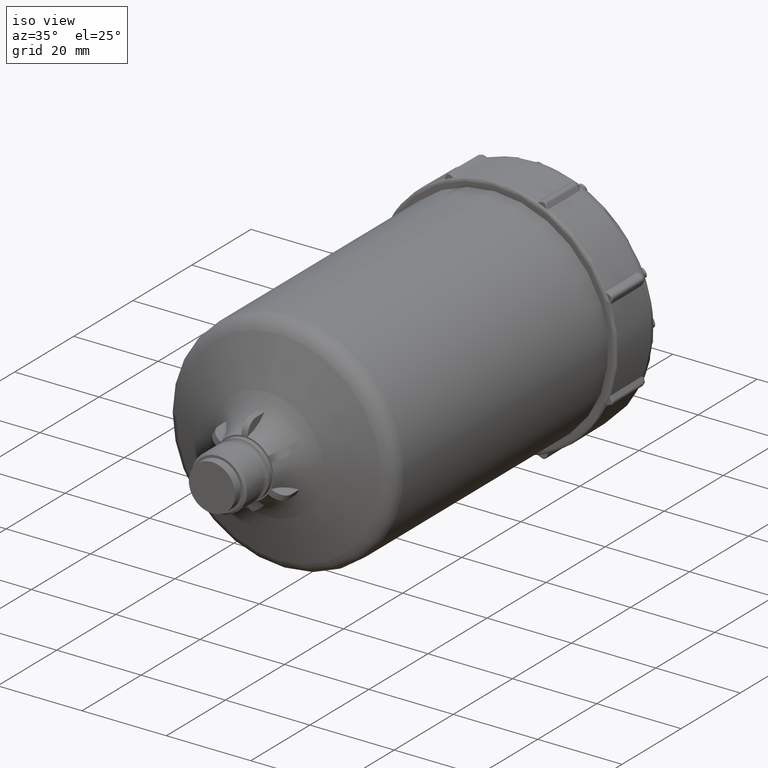
[diagram: clean part render]
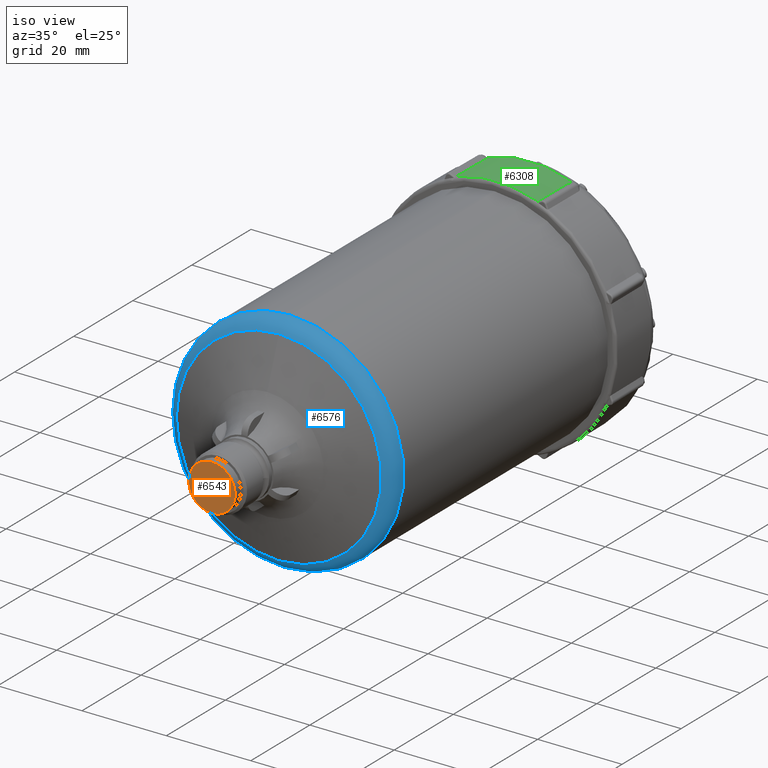
[diagram: same view with three faces highlighted in distinct colors, each labeled with its STEP entity id]
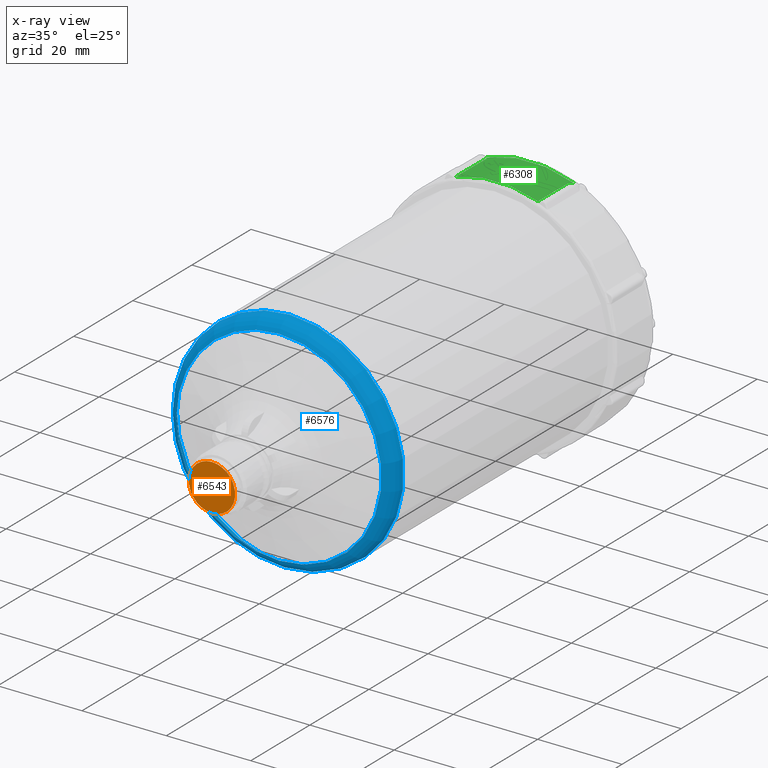
[diagram: x-ray of the same camera — body ghosted, the three highlighted faces saturated]
A machine part, iso view with three faces highlighted in distinct colors.
The next image is the same camera in x-ray (body ghosted, the three faces saturated) — at least one of them is partly hidden behind the body in this view.
Their STEP definitions:

[orange] entity #6543 — the highlighted planar face has unit normal (0, -1, -0).
#1775=FACE_OUTER_BOUND('',#2156,.T.);
#2156=EDGE_LOOP('',(#5808,#5809));
#2536=CIRCLE('',#7153,5.5);
#2537=CIRCLE('',#7154,5.5);
#3128=VERTEX_POINT('',#13807);
#3129=VERTEX_POINT('',#13809);
#4040=EDGE_CURVE('',#3128,#3129,#2536,.T.);
#4041=EDGE_CURVE('',#3129,#3128,#2537,.T.);
#5808=ORIENTED_EDGE('',*,*,#4041,.F.);
#5809=ORIENTED_EDGE('',*,*,#4040,.F.);
#6207=PLANE('',#7155);
#6543=ADVANCED_FACE('',(#1775),#6207,.T.);
#7153=AXIS2_PLACEMENT_3D('',#13810,#8603,#8604);
#7154=AXIS2_PLACEMENT_3D('',#13811,#8605,#8606);
#7155=AXIS2_PLACEMENT_3D('',#13812,#8607,#8608);
#8603=DIRECTION('center_axis',(-3.67702306362359E-17,1.,2.31725584917124E-17));
#8604=DIRECTION('ref_axis',(1.63311561366286E-33,6.4431110866773E-32,-1.));
#8605=DIRECTION('center_axis',(-3.67702306362359E-17,1.,2.31725584917124E-17));
#8606=DIRECTION('ref_axis',(1.63311561366286E-33,6.4431110866773E-32,-1.));
#8607=DIRECTION('center_axis',(3.67702306362359E-17,-1.,-2.31725584917124E-17));
#8608=DIRECTION('ref_axis',(-1.,-3.67702306362359E-17,-1.63311561366286E-33));
#13807=CARTESIAN_POINT('',(4.20349788060968E-15,-96.,5.5));
#13809=CARTESIAN_POINT('',(3.67990066116245,-96.,-4.08758255255795));
#13810=CARTESIAN_POINT('Origin',(3.52994214107864E-15,-96.,-2.52001573597372E-15));
#13811=CARTESIAN_POINT('Origin',(3.52994214107864E-15,-96.,-2.52001573597372E-15));
#13812=CARTESIAN_POINT('Origin',(3.52994214107864E-15,-96.,-5.06367513459482));

[blue] entity #6576 — the highlighted toroidal blend (fillet) surface has major radius 22.95 mm and minor (blend) radius 4 mm.
#200=TOROIDAL_SURFACE('',#7226,22.9500000000001,4.);
#1808=FACE_OUTER_BOUND('',#2191,.T.);
#2191=EDGE_LOOP('',(#6001,#6002,#6003,#6004,#6005,#6006,#6007,#6008));
#2573=CIRCLE('',#7223,24.3180805733027);
#2574=CIRCLE('',#7224,24.3180805733027);
#2575=CIRCLE('',#7225,24.3180805733027);
#2576=CIRCLE('',#7227,26.9500000000001);
#2577=CIRCLE('',#7228,26.9500000000001);
#2578=CIRCLE('',#7229,26.9500000000001);
#2579=CIRCLE('',#7230,4.);
#3193=VERTEX_POINT('',#14162);
#3194=VERTEX_POINT('',#14163);
#3195=VERTEX_POINT('',#14165);
#3196=VERTEX_POINT('',#14170);
#3197=VERTEX_POINT('',#14171);
#3198=VERTEX_POINT('',#14173);
#4134=EDGE_CURVE('',#3193,#3194,#2573,.T.);
#4135=EDGE_CURVE('',#3195,#3193,#2574,.T.);
#4137=EDGE_CURVE('',#3194,#3195,#2575,.T.);
#4138=EDGE_CURVE('',#3196,#3197,#2576,.T.);
#4139=EDGE_CURVE('',#3198,#3196,#2577,.T.);
#4140=EDGE_CURVE('',#3197,#3198,#2578,.T.);
#4141=EDGE_CURVE('',#3197,#3194,#2579,.T.);
#6001=ORIENTED_EDGE('',*,*,#4138,.F.);
#6002=ORIENTED_EDGE('',*,*,#4139,.F.);
#6003=ORIENTED_EDGE('',*,*,#4140,.F.);
#6004=ORIENTED_EDGE('',*,*,#4141,.T.);
#6005=ORIENTED_EDGE('',*,*,#4137,.T.);
#6006=ORIENTED_EDGE('',*,*,#4135,.T.);
#6007=ORIENTED_EDGE('',*,*,#4134,.T.);
#6008=ORIENTED_EDGE('',*,*,#4141,.F.);
#6576=ADVANCED_FACE('',(#1808),#200,.T.);
#7223=AXIS2_PLACEMENT_3D('',#14164,#8782,#8783);
#7224=AXIS2_PLACEMENT_3D('',#14166,#8784,#8785);
#7225=AXIS2_PLACEMENT_3D('',#14168,#8787,#8788);
#7226=AXIS2_PLACEMENT_3D('',#14169,#8789,#8790);
#7227=AXIS2_PLACEMENT_3D('',#14172,#8791,#8792);
#7228=AXIS2_PLACEMENT_3D('',#14174,#8793,#8794);
#7229=AXIS2_PLACEMENT_3D('',#14175,#8795,#8796);
#7230=AXIS2_PLACEMENT_3D('',#14176,#8797,#8798);
#8782=DIRECTION('center_axis',(-3.67702306362359E-17,1.,2.31725584917124E-17));
#8783=DIRECTION('ref_axis',(1.63311561366286E-33,6.58922775134368E-32,-1.));
#8784=DIRECTION('center_axis',(-3.67702306362359E-17,1.,2.31725584917124E-17));
#8785=DIRECTION('ref_axis',(1.63311561366286E-33,6.58922775134368E-32,-1.));
#8787=DIRECTION('center_axis',(-3.67702306362359E-17,1.,2.31725584917124E-17));
#8788=DIRECTION('ref_axis',(1.63311561366286E-33,6.58922775134368E-32,-1.));
#8789=DIRECTION('center_axis',(-3.67702306362359E-17,1.,2.31725584917124E-17));
#8790=DIRECTION('ref_axis',(1.,0.,0.));
#8791=DIRECTION('center_axis',(-3.67702306362359E-17,1.,2.31725584917124E-17));
#8792=DIRECTION('ref_axis',(1.63311561366286E-33,6.40309176315755E-32,-1.));
#8793=DIRECTION('center_axis',(-3.67702306362359E-17,1.,2.31725584917124E-17));
#8794=DIRECTION('ref_axis',(1.63311561366286E-33,6.40309176315755E-32,-1.));
#8795=DIRECTION('center_axis',(-3.67702306362359E-17,1.,2.31725584917124E-17));
#8796=DIRECTION('ref_axis',(1.63311561366286E-33,6.40309176315755E-32,-1.));
#8797=DIRECTION('center_axis',(1.22464679914735E-16,-2.31725584917124E-17,
1.));
#8798=DIRECTION('ref_axis',(-1.,0.,1.22464679914735E-16));
#14162=CARTESIAN_POINT('',(2.69606187671802E-15,-73.3218647277437,-24.3180805733027));
#14163=CARTESIAN_POINT('',(-24.3180805733027,-73.3218647277437,9.83600633655866E-16));
#14164=CARTESIAN_POINT('Origin',(2.69606187671802E-15,-73.3218647277437,
-1.9945053198944E-15));
#14165=CARTESIAN_POINT('',(5.67416783026828E-15,-73.3218647277437,24.3180805733027));
#14166=CARTESIAN_POINT('Origin',(2.69606187671802E-15,-73.3218647277437,
-1.9945053198944E-15));
#14168=CARTESIAN_POINT('Origin',(2.69606187671802E-15,-73.3218647277437,
-1.9945053198944E-15));
#14169=CARTESIAN_POINT('Origin',(2.55785101914415E-15,-69.5630942446001,
-1.90740499101683E-15));
#14170=CARTESIAN_POINT('',(2.55785101914415E-15,-69.5630942446001,-26.9500000000001));
#14171=CARTESIAN_POINT('',(-26.9500000000001,-69.5630942446001,1.39301813268529E-15));
#14172=CARTESIAN_POINT('Origin',(2.55785101914415E-15,-69.5630942446001,
-1.90740499101683E-15));
#14173=CARTESIAN_POINT('',(5.85827414284628E-15,-69.5630942446001,26.9500000000001));
#14174=CARTESIAN_POINT('Origin',(2.55785101914415E-15,-69.5630942446001,
-1.90740499101683E-15));
#14175=CARTESIAN_POINT('Origin',(2.55785101914415E-15,-69.5630942446001,
-1.90740499101683E-15));
#14176=CARTESIAN_POINT('Origin',(-22.9500000000001,-69.5630942446001,9.03159413026354E-16));

[green] entity #6308 — the highlighted conical surface has half-angle 0.5 deg.
#141=CONICAL_SURFACE('',#6741,28.8076770206804,0.00872664625997145);
#252=LINE('',#9601,#556);
#256=LINE('',#9616,#560);
#556=VECTOR('',#7486,10.);
#560=VECTOR('',#7496,10.);
#1196=B_SPLINE_CURVE_WITH_KNOTS('',3,(#9558,#9559,#9560,#9561,#9562,#9563,
#9564,#9565,#9566,#9567),.UNSPECIFIED.,.F.,.F.,(4,2,2,2,4),(0.,0.0176420603398522,
0.0358691467889932,0.0565501842508269,0.0786366672598294),.UNSPECIFIED.);
#1199=B_SPLINE_CURVE_WITH_KNOTS('',3,(#9625,#9626,#9627,#9628,#9629,#9630,
#9631,#9632,#9633,#9634),.UNSPECIFIED.,.F.,.F.,(4,2,2,2,4),(5.18018849840829E-6,
0.0521836934287645,0.0836170366196132,0.106430164740576,0.129008428082367),
 .UNSPECIFIED.);
#1201=B_SPLINE_CURVE_WITH_KNOTS('',3,(#9641,#9642,#9643,#9644),
 .UNSPECIFIED.,.F.,.F.,(4,4),(0.,0.000616557050022801),.UNSPECIFIED.);
#1540=FACE_OUTER_BOUND('',#1898,.T.);
#1898=EDGE_LOOP('',(#4535,#4536,#4537,#4538,#4539,#4540,#4541,#4542));
#2255=CIRCLE('',#6693,0.467471093241846);
#2276=CIRCLE('',#6725,28.8591919251821);
#2289=CIRCLE('',#6742,28.7600344394821);
#2629=VERTEX_POINT('',#9064);
#2634=VERTEX_POINT('',#9088);
#2690=VERTEX_POINT('',#9556);
#2691=VERTEX_POINT('',#9557);
#2692=VERTEX_POINT('',#9568);
#2696=VERTEX_POINT('',#9613);
#2697=VERTEX_POINT('',#9623);
#2698=VERTEX_POINT('',#9624);
#3354=EDGE_CURVE('',#2690,#2691,#1196,.T.);
#3355=EDGE_CURVE('',#2692,#2690,#2255,.T.);
#3361=EDGE_CURVE('',#2629,#2692,#252,.T.);
#3366=EDGE_CURVE('',#2696,#2634,#256,.T.);
#3367=EDGE_CURVE('',#2697,#2698,#1199,.T.);
#3370=EDGE_CURVE('',#2698,#2696,#1201,.T.);
#3417=EDGE_CURVE('',#2629,#2634,#2276,.T.);
#3435=EDGE_CURVE('',#2697,#2691,#2289,.T.);
#4535=ORIENTED_EDGE('',*,*,#3361,.T.);
#4536=ORIENTED_EDGE('',*,*,#3355,.T.);
#4537=ORIENTED_EDGE('',*,*,#3354,.T.);
#4538=ORIENTED_EDGE('',*,*,#3435,.F.);
#4539=ORIENTED_EDGE('',*,*,#3367,.T.);
#4540=ORIENTED_EDGE('',*,*,#3370,.T.);
#4541=ORIENTED_EDGE('',*,*,#3366,.T.);
#4542=ORIENTED_EDGE('',*,*,#3417,.F.);
#6308=ADVANCED_FACE('',(#1540),#141,.T.);
#6693=AXIS2_PLACEMENT_3D('',#9569,#7477,#7478);
#6725=AXIS2_PLACEMENT_3D('',#9898,#7562,#7563);
#6741=AXIS2_PLACEMENT_3D('',#9969,#7595,#7596);
#6742=AXIS2_PLACEMENT_3D('',#9970,#7597,#7598);
#7477=DIRECTION('center_axis',(-0.923879532511287,3.13644594312861E-15,
0.382683432365089));
#7478=DIRECTION('ref_axis',(0.382616748355849,0.0186675403560571,0.92371854307178));
#7486=DIRECTION('',(-0.00335307124203252,0.999961832319102,-0.00806788809229159));
#7496=DIRECTION('',(-0.00335307124203342,-0.999961832319102,0.00806788809229116));
#7562=DIRECTION('center_axis',(3.6814030682041E-17,-1.,-2.31725584917116E-17));
#7563=DIRECTION('ref_axis',(-0.502332310881175,-3.85296009966207E-17,0.864674649475037));
#7595=DIRECTION('center_axis',(3.6814030682041E-17,-1.,-2.31725584917116E-17));
#7596=DIRECTION('ref_axis',(-1.,-3.67702306362367E-17,-1.11022302462516E-16));
#7597=DIRECTION('center_axis',(-3.6814030682041E-17,1.,2.31725584917116E-17));
#7598=DIRECTION('ref_axis',(1.,3.6814030682041E-17,1.11022302462516E-16));
#9064=CARTESIAN_POINT('',(9.76506075624162,0.407601157467384,27.1568876531139));
#9088=CARTESIAN_POINT('',(-9.76506075624165,0.407601157467384,27.1568876531139));
#9556=CARTESIAN_POINT('',(9.73059423865035,10.7163833493919,27.0736781190135));
#9557=CARTESIAN_POINT('',(10.3880729723535,11.7699235988919,26.8184175685527));
#9558=CARTESIAN_POINT('Ctrl Pts',(9.73059423865035,10.7163833493917,27.0736781190135));
#9559=CARTESIAN_POINT('Ctrl Pts',(9.73174265175293,10.775171198845,27.0727202023183));
#9560=CARTESIAN_POINT('Ctrl Pts',(9.74381337701934,10.8340243660092,27.0678435219122));
#9561=CARTESIAN_POINT('Ctrl Pts',(9.79070759244089,10.96150615229,27.0497343631223));
#9562=CARTESIAN_POINT('Ctrl Pts',(9.82693929101313,11.0321471597735,27.035980536594));
#9563=CARTESIAN_POINT('Ctrl Pts',(9.93650654609172,11.2061281813436,26.9943018641383));
#9564=CARTESIAN_POINT('Ctrl Pts',(10.0105120176176,11.3069029812139,26.9660935682769));
#9565=CARTESIAN_POINT('Ctrl Pts',(10.1886924334355,11.5334841049849,26.8971847954724));
#9566=CARTESIAN_POINT('Ctrl Pts',(10.2930118459526,11.6582714277222,26.856284267343));
#9567=CARTESIAN_POINT('Ctrl Pts',(10.3880729723535,11.7699235988919,26.8184175685527));
#9568=CARTESIAN_POINT('',(9.73063095778057,10.7102191229658,27.07381254655));
#9569=CARTESIAN_POINT('Origin',(9.55179157799117,10.7014925874674,26.6420103106617));
#9601=CARTESIAN_POINT('',(9.74778739094844,5.55891014021657,27.1153258823958));
#9613=CARTESIAN_POINT('',(-9.73051402565529,10.7102191229658,27.0737641116778));
#9616=CARTESIAN_POINT('',(-9.74778739094846,5.55891014021657,27.1153258823958));
#9623=CARTESIAN_POINT('',(-10.3880729723535,11.7699235988919,26.8184175685527));
#9624=CARTESIAN_POINT('',(-9.73059423865038,10.7163833493915,27.0736781190135));
#9625=CARTESIAN_POINT('Ctrl Pts',(-10.3880729723535,11.7699235988919,26.8184175685527));
#9626=CARTESIAN_POINT('Ctrl Pts',(-10.2788981015615,11.6416944076061,26.8619063436627));
#9627=CARTESIAN_POINT('Ctrl Pts',(-10.1521106854565,11.4898558103385,26.9114757587266));
#9628=CARTESIAN_POINT('Ctrl Pts',(-9.98353105198738,11.2695061035601,26.9763695405519));
#9629=CARTESIAN_POINT('Ctrl Pts',(-9.9132032944041,11.1726536291858,27.0031726336254));
#9630=CARTESIAN_POINT('Ctrl Pts',(-9.8175986732969,11.0134466124341,27.0395258747863));
#9631=CARTESIAN_POINT('Ctrl Pts',(-9.78607941614656,10.9506844230633,27.0515074521149));
#9632=CARTESIAN_POINT('Ctrl Pts',(-9.74293893419708,10.8296970354737,27.0681969086542));
#9633=CARTESIAN_POINT('Ctrl Pts',(-9.73170010403123,10.7729931593814,27.0727556923112));
#9634=CARTESIAN_POINT('Ctrl Pts',(-9.73059423865038,10.7163833493915,27.0736781190135));
#9641=CARTESIAN_POINT('Ctrl Pts',(-9.73059423865038,10.7163833493915,27.0736781190135));
#9642=CARTESIAN_POINT('Ctrl Pts',(-9.73055410375791,10.7143288238804,27.0737115964124));
#9643=CARTESIAN_POINT('Ctrl Pts',(-9.73052736022582,10.7122741315407,27.0737402622257));
#9644=CARTESIAN_POINT('Ctrl Pts',(-9.73051402565529,10.7102191229658,27.0737641116778));
#9898=CARTESIAN_POINT('Origin',(-2.23502024613415E-15,0.407601162316245,
-2.50643336953817E-15));
#9969=CARTESIAN_POINT('Origin',(-2.31888280284741E-16,6.31062453071154,
-1.49199166005781E-16));
#9970=CARTESIAN_POINT('Origin',(-4.32867083683171E-16,11.7699235988919,
-3.54478165099257E-15));